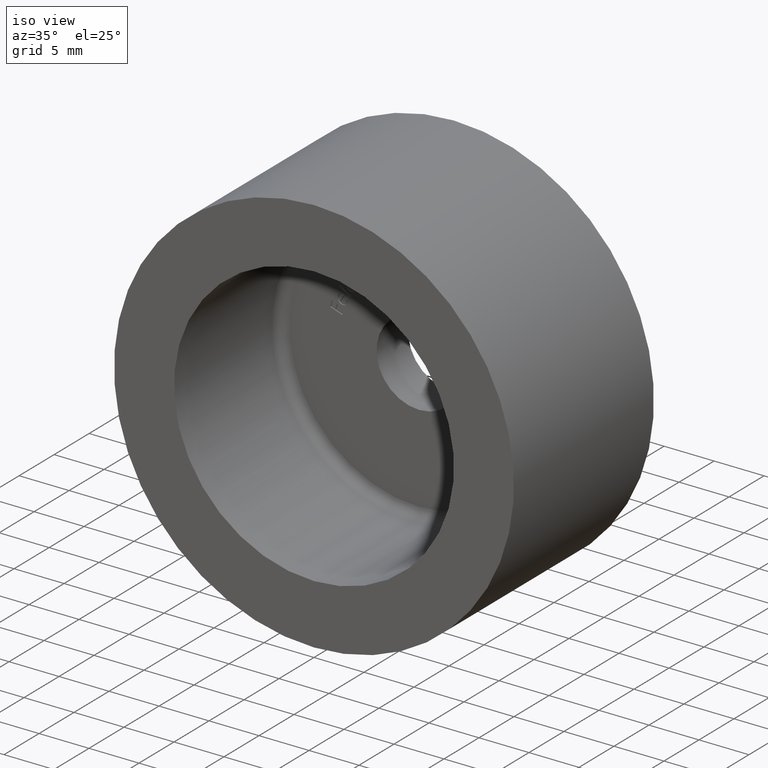
[diagram: clean part render]
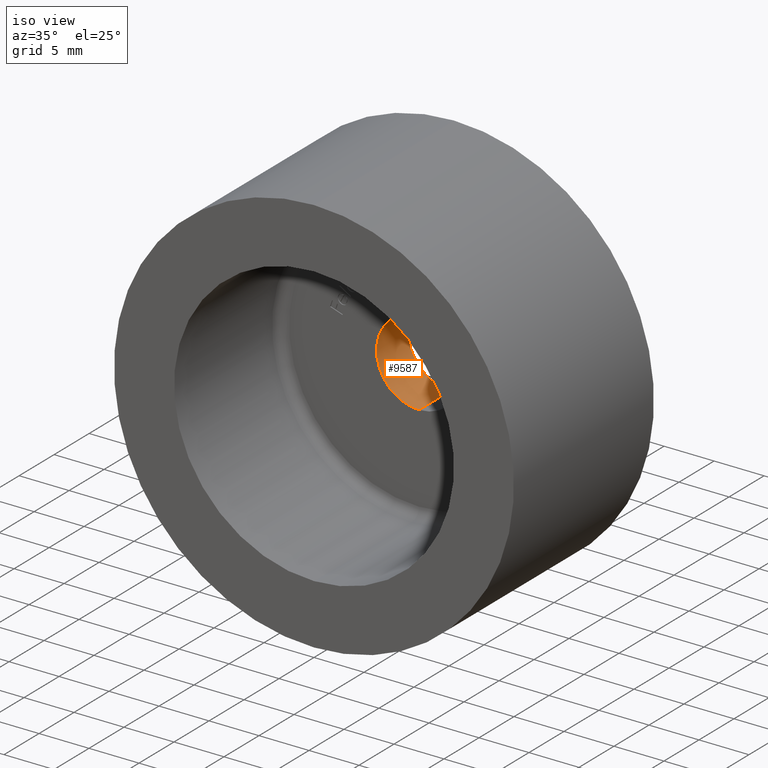
[diagram: same view with one face highlighted and labeled with its STEP entity id]
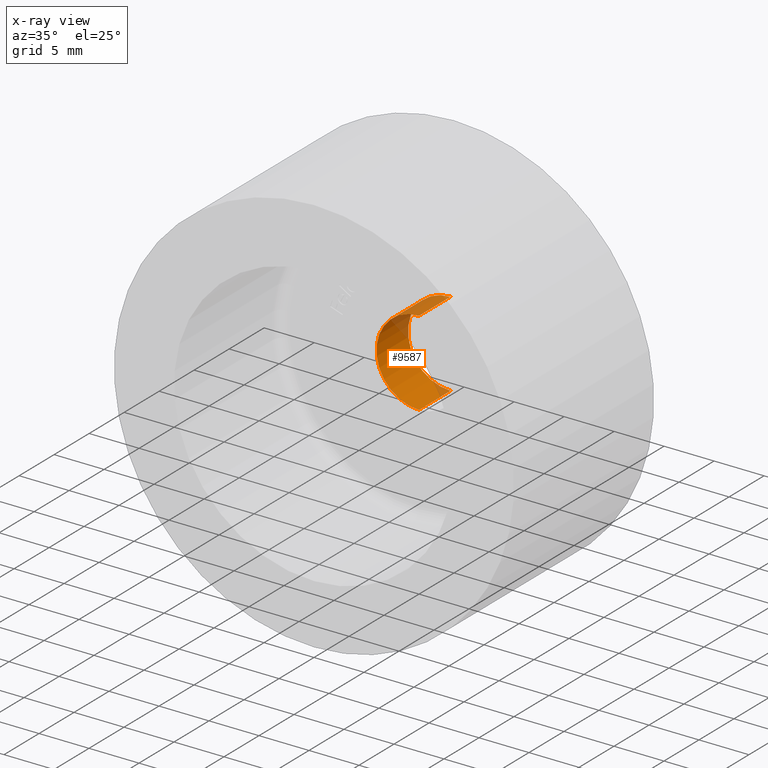
[diagram: x-ray of the same camera — body ghosted, the highlighted face saturated]
A machine part, iso view. The second image highlights one B-rep face of the part: STEP entity #9587.
The next image is the same camera in x-ray: the body ghosted, the highlighted face saturated — about 21% of this face is hidden behind the body in this view.
In plain terms, the highlighted cylindrical surface (partial cylindrical patch) has radius 4.25 mm, axis along (-0, 1, -0).
Its self-contained STEP definition (entity closure, byte-faithful):
#533 = ORIENTED_EDGE ( 'NONE', *, *, #6458, .T. ) ;
#636 = CIRCLE ( 'NONE', #11866, 4.250000000000001776 ) ;
#930 = VERTEX_POINT ( 'NONE', #1974 ) ;
#1727 = DIRECTION ( 'NONE',  ( -0.000000000000000000, 1.000000000000000000, -0.000000000000000000 ) ) ;
#1974 = CARTESIAN_POINT ( 'NONE',  ( 5.510910596163093500E-16, 19.50000000000000000, -4.250000000000003553 ) ) ;
#2210 = ORIENTED_EDGE ( 'NONE', *, *, #4438, .F. ) ;
#2733 = VECTOR ( 'NONE', #10389, 1000.000000000000000 ) ;
#3024 = ORIENTED_EDGE ( 'NONE', *, *, #12937, .T. ) ;
#3312 = VERTEX_POINT ( 'NONE', #6635 ) ;
#3665 = LINE ( 'NONE', #10542, #2733 ) ;
#3764 = EDGE_CURVE ( 'NONE', #3312, #11523, #636, .T. ) ;
#3925 = EDGE_LOOP ( 'NONE', ( #9639, #3024, #533, #2210 ) ) ;
#4222 = CIRCLE ( 'NONE', #11747, 4.250000000000003553 ) ;
#4378 = VERTEX_POINT ( 'NONE', #12453 ) ;
#4438 = EDGE_CURVE ( 'NONE', #11523, #4378, #13710, .T. ) ;
#5586 = CARTESIAN_POINT ( 'NONE',  ( 0.000000000000000000, 20.00000000000000000, 4.250000000000001776 ) ) ;
#5991 = CARTESIAN_POINT ( 'NONE',  ( 0.000000000000000000, 20.00000000000000000, 0.000000000000000000 ) ) ;
#6458 = EDGE_CURVE ( 'NONE', #930, #4378, #4222, .T. ) ;
#6512 = VECTOR ( 'NONE', #9288, 1000.000000000000000 ) ;
#6635 = CARTESIAN_POINT ( 'NONE',  ( 5.204748896376253657E-16, 15.00000000000000000, -4.250000000000001776 ) ) ;
#7237 = DIRECTION ( 'NONE',  ( -0.000000000000000000, 1.000000000000000000, -0.000000000000000000 ) ) ;
#7715 = CARTESIAN_POINT ( 'NONE',  ( 0.000000000000000000, 19.50000000000000000, 0.000000000000000000 ) ) ;
#8491 = AXIS2_PLACEMENT_3D ( 'NONE', #5991, #7237, #13653 ) ;
#9288 = DIRECTION ( 'NONE',  ( -0.000000000000000000, 1.000000000000000000, -0.000000000000000000 ) ) ;
#9587 = ADVANCED_FACE ( 'NONE', ( #11136 ), #14333, .F. ) ;
#9639 = ORIENTED_EDGE ( 'NONE', *, *, #3764, .F. ) ;
#9781 = DIRECTION ( 'NONE',  ( -0.000000000000000000, 1.000000000000000000, -0.000000000000000000 ) ) ;
#10389 = DIRECTION ( 'NONE',  ( -0.000000000000000000, 1.000000000000000000, -0.000000000000000000 ) ) ;
#10542 = CARTESIAN_POINT ( 'NONE',  ( 5.204748896376253657E-16, 20.00000000000000000, -4.250000000000001776 ) ) ;
#11136 = FACE_OUTER_BOUND ( 'NONE', #3925, .T. ) ;
#11523 = VERTEX_POINT ( 'NONE', #12413 ) ;
#11747 = AXIS2_PLACEMENT_3D ( 'NONE', #7715, #1727, #12663 ) ;
#11866 = AXIS2_PLACEMENT_3D ( 'NONE', #12129, #9781, #13531 ) ;
#12129 = CARTESIAN_POINT ( 'NONE',  ( 0.000000000000000000, 15.00000000000000000, 0.000000000000000000 ) ) ;
#12413 = CARTESIAN_POINT ( 'NONE',  ( 0.000000000000000000, 15.00000000000000000, 4.250000000000001776 ) ) ;
#12453 = CARTESIAN_POINT ( 'NONE',  ( 0.000000000000000000, 19.50000000000000000, 4.250000000000003553 ) ) ;
#12663 = DIRECTION ( 'NONE',  ( 0.000000000000000000, 0.000000000000000000, 1.000000000000000000 ) ) ;
#12937 = EDGE_CURVE ( 'NONE', #3312, #930, #3665, .T. ) ;
#13531 = DIRECTION ( 'NONE',  ( 0.000000000000000000, 0.000000000000000000, 1.000000000000000000 ) ) ;
#13653 = DIRECTION ( 'NONE',  ( 0.000000000000000000, 0.000000000000000000, 1.000000000000000000 ) ) ;
#13710 = LINE ( 'NONE', #5586, #6512 ) ;
#14333 = CYLINDRICAL_SURFACE ( 'NONE', #8491, 4.250000000000001776 ) ;